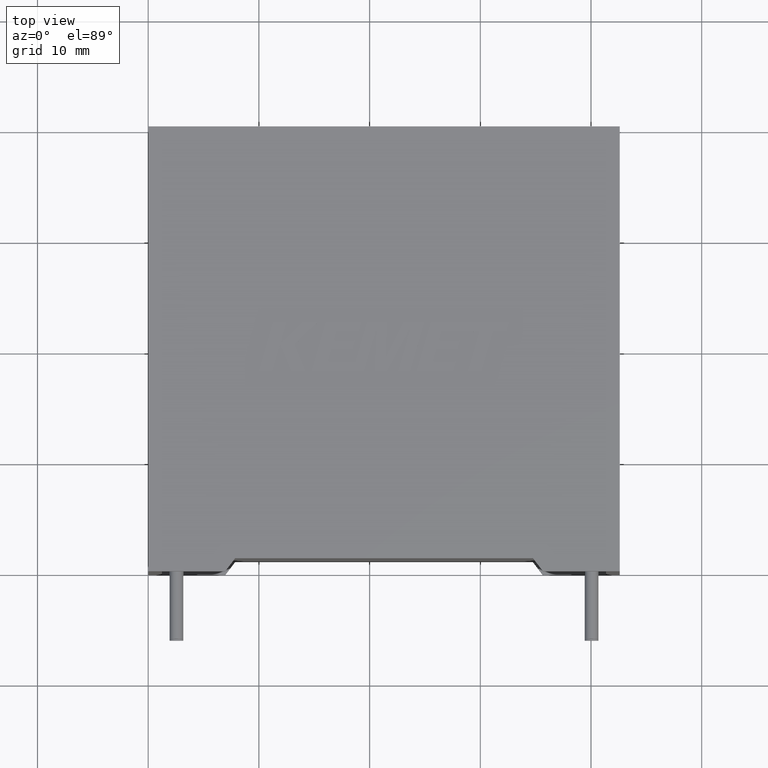
[diagram: clean part render]
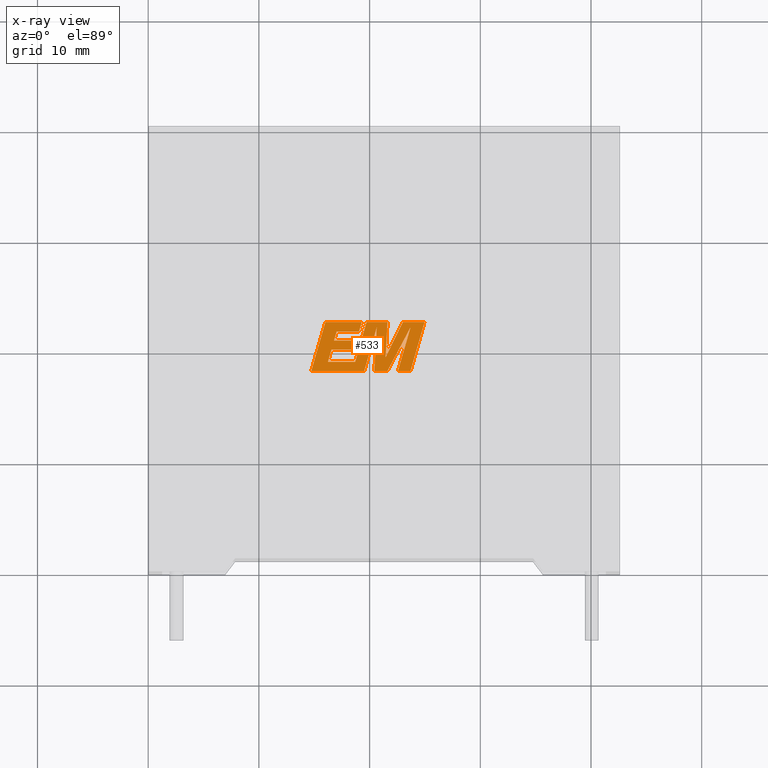
[diagram: x-ray — body ghosted, one internal face saturated and labeled with its STEP entity id]
A machine part, top view, then the same camera in x-ray: the body is ghosted and one INTERNAL B-rep face — a face not visible from any outside direction — is saturated and labeled: STEP entity #533.
In plain terms, the highlighted planar face has unit normal (0, 0, -1).
Its self-contained STEP definition (entity closure, byte-faithful):
#13 = VERTEX_POINT ( 'NONE', #274 ) ;
#34 = CARTESIAN_POINT ( 'NONE',  ( 22.55971088192821100, 18.07793999999988100, 20.39999999999999900 ) ) ;
#35 = VECTOR ( 'NONE', #1346, 1000.000000000000000 ) ;
#64 = VECTOR ( 'NONE', #1162, 1000.000000000000000 ) ;
#78 = CARTESIAN_POINT ( 'NONE',  ( 17.02363656092146000, 21.66919180815600000, 20.39999999999999900 ) ) ;
#96 = DIRECTION ( 'NONE',  ( -1.000000000000000000, 0.0000000000000000000, 0.0000000000000000000 ) ) ;
#104 = LINE ( 'NONE', #1481, #142 ) ;
#106 = DIRECTION ( 'NONE',  ( 0.2746459304916870600, 0.9615454294334487800, 0.0000000000000000000 ) ) ;
#123 = VERTEX_POINT ( 'NONE', #782 ) ;
#130 = VECTOR ( 'NONE', #2457, 1000.000000000000100 ) ;
#139 = ORIENTED_EDGE ( 'NONE', *, *, #2895, .F. ) ;
#142 = VECTOR ( 'NONE', #1519, 1000.000000000000100 ) ;
#171 = ORIENTED_EDGE ( 'NONE', *, *, #1486, .F. ) ;
#172 = VECTOR ( 'NONE', #2100, 1000.000000000000100 ) ;
#175 = EDGE_CURVE ( 'NONE', #3006, #1748, #2661, .T. ) ;
#180 = CARTESIAN_POINT ( 'NONE',  ( 14.73111344322171200, 18.07793999999987700, 20.39999999999999900 ) ) ;
#193 = CARTESIAN_POINT ( 'NONE',  ( 21.60450190883435100, 18.07793999999987700, 20.39999999999999900 ) ) ;
#243 = LINE ( 'NONE', #2799, #280 ) ;
#245 = EDGE_CURVE ( 'NONE', #2640, #1157, #908, .T. ) ;
#246 = VERTEX_POINT ( 'NONE', #386 ) ;
#247 = LINE ( 'NONE', #1046, #2102 ) ;
#274 = CARTESIAN_POINT ( 'NONE',  ( 20.64337227469650000, 22.02677815657259000, 20.39999999999999900 ) ) ;
#278 = EDGE_CURVE ( 'NONE', #2679, #3089, #980, .T. ) ;
#280 = VECTOR ( 'NONE', #582, 1000.000000000000100 ) ;
#290 = EDGE_CURVE ( 'NONE', #13, #835, #1454, .T. ) ;
#320 = CARTESIAN_POINT ( 'NONE',  ( 22.55971088192821100, 18.07793999999988100, 20.39999999999999900 ) ) ;
#332 = VERTEX_POINT ( 'NONE', #3072 ) ;
#340 = LINE ( 'NONE', #2950, #591 ) ;
#359 = LINE ( 'NONE', #1968, #2697 ) ;
#361 = EDGE_LOOP ( 'NONE', ( #2937, #1826, #2593, #650, #2769, #2349, #2842, #2315, #1728, #171, #429, #1296, #639, #139, #1788, #697, #1756, #1718, #1377, #2637, #3094, #2693, #836 ) ) ;
#366 = VECTOR ( 'NONE', #2749, 1000.000000000000000 ) ;
#384 = DIRECTION ( 'NONE',  ( -0.2762517575166409900, -0.9610853065513834700, 0.0000000000000000000 ) ) ;
#386 = CARTESIAN_POINT ( 'NONE',  ( 16.00748119315608500, 22.51347267852246900, 20.39999999999999900 ) ) ;
#417 = LINE ( 'NONE', #1843, #2752 ) ;
#429 = ORIENTED_EDGE ( 'NONE', *, *, #696, .F. ) ;
#533 = ADVANCED_FACE ( 'NONE', ( #2837 ), #1226, .T. ) ;
#537 = VECTOR ( 'NONE', #2230, 1000.000000000000000 ) ;
#573 = VECTOR ( 'NONE', #2010, 1000.000000000000200 ) ;
#582 = DIRECTION ( 'NONE',  ( 0.2793947940878290800, 0.9601763114327595000, 0.0000000000000000000 ) ) ;
#591 = VECTOR ( 'NONE', #96, 1000.000000000000000 ) ;
#639 = ORIENTED_EDGE ( 'NONE', *, *, #2723, .F. ) ;
#650 = ORIENTED_EDGE ( 'NONE', *, *, #2808, .F. ) ;
#656 = EDGE_CURVE ( 'NONE', #1748, #13, #2955, .T. ) ;
#658 = LINE ( 'NONE', #1070, #2475 ) ;
#696 = EDGE_CURVE ( 'NONE', #1105, #246, #2122, .T. ) ;
#697 = ORIENTED_EDGE ( 'NONE', *, *, #2248, .F. ) ;
#712 = DIRECTION ( 'NONE',  ( 0.0000000000000000000, 0.0000000000000000000, -1.000000000000000000 ) ) ;
#745 = CARTESIAN_POINT ( 'NONE',  ( 19.50954545448809100, 18.07793999999987700, 20.39999999999999900 ) ) ;
#771 = CARTESIAN_POINT ( 'NONE',  ( 19.04451057535562700, 21.66919180815600000, 20.39999999999999900 ) ) ;
#782 = CARTESIAN_POINT ( 'NONE',  ( 19.04451057535562700, 21.66919180815600000, 20.39999999999999900 ) ) ;
#792 = VECTOR ( 'NONE', #2536, 1000.000000000000000 ) ;
#803 = CARTESIAN_POINT ( 'NONE',  ( 17.02363656092146000, 21.66919180815600000, 20.39999999999999900 ) ) ;
#815 = LINE ( 'NONE', #1623, #172 ) ;
#835 = VERTEX_POINT ( 'NONE', #2040 ) ;
#836 = ORIENTED_EDGE ( 'NONE', *, *, #1391, .F. ) ;
#837 = CARTESIAN_POINT ( 'NONE',  ( 19.28430409104226900, 22.51347267852246900, 20.39999999999999900 ) ) ;
#845 = EDGE_CURVE ( 'NONE', #2505, #2640, #1369, .T. ) ;
#849 = LINE ( 'NONE', #771, #573 ) ;
#862 = CARTESIAN_POINT ( 'NONE',  ( 19.50954545448809100, 18.07793999999987700, 20.39999999999999900 ) ) ;
#864 = EDGE_CURVE ( 'NONE', #1865, #332, #340, .T. ) ;
#908 = LINE ( 'NONE', #1326, #2087 ) ;
#980 = LINE ( 'NONE', #1098, #35 ) ;
#1009 = LINE ( 'NONE', #193, #64 ) ;
#1046 = CARTESIAN_POINT ( 'NONE',  ( 23.69914816909359300, 22.04579440274525800, 20.39999999999999900 ) ) ;
#1052 = EDGE_CURVE ( 'NONE', #3056, #2587, #1009, .T. ) ;
#1070 = CARTESIAN_POINT ( 'NONE',  ( 18.45314577919338500, 20.02420559325016900, 20.39999999999999900 ) ) ;
#1072 = CARTESIAN_POINT ( 'NONE',  ( 21.44508031966771700, 19.34467114338324800, 20.39999999999999900 ) ) ;
#1081 = CARTESIAN_POINT ( 'NONE',  ( 18.69434191160631900, 18.92180278269269100, 20.39999999999999900 ) ) ;
#1098 = CARTESIAN_POINT ( 'NONE',  ( 18.68735580131990700, 20.84418343126179400, 20.39999999999999900 ) ) ;
#1105 = VERTEX_POINT ( 'NONE', #3100 ) ;
#1113 = VECTOR ( 'NONE', #2738, 1000.000000000000000 ) ;
#1118 = VECTOR ( 'NONE', #2450, 1000.000000000000000 ) ;
#1157 = VERTEX_POINT ( 'NONE', #1730 ) ;
#1159 = CARTESIAN_POINT ( 'NONE',  ( 21.44508031966771700, 19.34467114338324800, 20.39999999999999900 ) ) ;
#1162 = DIRECTION ( 'NONE',  ( 0.4668459304955230900, 0.8843386665637600300, 0.0000000000000000000 ) ) ;
#1226 = PLANE ( 'NONE',  #2130 ) ;
#1236 = LINE ( 'NONE', #3146, #1118 ) ;
#1255 = CARTESIAN_POINT ( 'NONE',  ( 23.69914816909359300, 22.04579440274525800, 20.39999999999999900 ) ) ;
#1296 = ORIENTED_EDGE ( 'NONE', *, *, #2751, .F. ) ;
#1326 = CARTESIAN_POINT ( 'NONE',  ( 21.61565822307399600, 22.51347267852246900, 20.39999999999999900 ) ) ;
#1336 = DIRECTION ( 'NONE',  ( 1.000000000000000000, 0.0000000000000000000, 0.0000000000000000000 ) ) ;
#1346 = DIRECTION ( 'NONE',  ( -1.000000000000000000, 0.0000000000000000000, 0.0000000000000000000 ) ) ;
#1369 = LINE ( 'NONE', #1072, #1848 ) ;
#1377 = ORIENTED_EDGE ( 'NONE', *, *, #2656, .F. ) ;
#1391 = EDGE_CURVE ( 'NONE', #332, #2505, #359, .T. ) ;
#1418 = VERTEX_POINT ( 'NONE', #1713 ) ;
#1442 = VERTEX_POINT ( 'NONE', #2228 ) ;
#1454 = LINE ( 'NONE', #1591, #3111 ) ;
#1470 = VERTEX_POINT ( 'NONE', #34 ) ;
#1476 = CARTESIAN_POINT ( 'NONE',  ( 18.68735580131990700, 20.84418343126179400, 20.39999999999999900 ) ) ;
#1481 = CARTESIAN_POINT ( 'NONE',  ( 16.00748119315608500, 22.51347267852246900, 20.39999999999999900 ) ) ;
#1486 = EDGE_CURVE ( 'NONE', #246, #3006, #104, .T. ) ;
#1511 = CARTESIAN_POINT ( 'NONE',  ( 20.42202856382045800, 18.07793999999987700, 20.39999999999999900 ) ) ;
#1519 = DIRECTION ( 'NONE',  ( -0.2765379750249978300, -0.9610029908221272600, 0.0000000000000000000 ) ) ;
#1530 = DIRECTION ( 'NONE',  ( -0.2760118818968583200, -0.9611542233438683500, 0.0000000000000000000 ) ) ;
#1554 = CARTESIAN_POINT ( 'NONE',  ( 16.54963302310860100, 20.02420559325016900, 20.39999999999999900 ) ) ;
#1591 = CARTESIAN_POINT ( 'NONE',  ( 20.64337227469650000, 22.02677815657259000, 20.39999999999999900 ) ) ;
#1614 = CARTESIAN_POINT ( 'NONE',  ( 18.45314577919338500, 20.02420559325016900, 20.39999999999999900 ) ) ;
#1618 = CARTESIAN_POINT ( 'NONE',  ( 18.72003407046369000, 18.07793999999987700, 20.39999999999999900 ) ) ;
#1623 = CARTESIAN_POINT ( 'NONE',  ( 23.68684829922329600, 18.07793999999988100, 20.39999999999999900 ) ) ;
#1642 = CARTESIAN_POINT ( 'NONE',  ( 23.68684829922329600, 18.07793999999988100, 20.39999999999999900 ) ) ;
#1657 = CARTESIAN_POINT ( 'NONE',  ( 24.96209664954390200, 22.51347267852246900, 20.39999999999999900 ) ) ;
#1669 = CARTESIAN_POINT ( 'NONE',  ( 16.78357331124689000, 20.84418343126179400, 20.39999999999999900 ) ) ;
#1713 = CARTESIAN_POINT ( 'NONE',  ( 16.23552779361820300, 18.92180278269269100, 20.39999999999999900 ) ) ;
#1718 = ORIENTED_EDGE ( 'NONE', *, *, #2766, .F. ) ;
#1728 = ORIENTED_EDGE ( 'NONE', *, *, #175, .F. ) ;
#1730 = CARTESIAN_POINT ( 'NONE',  ( 19.72672177880340200, 22.51347267852246900, 20.39999999999999900 ) ) ;
#1748 = VERTEX_POINT ( 'NONE', #862 ) ;
#1756 = ORIENTED_EDGE ( 'NONE', *, *, #2678, .F. ) ;
#1760 = EDGE_CURVE ( 'NONE', #1157, #2224, #417, .T. ) ;
#1774 = VECTOR ( 'NONE', #1336, 1000.000000000000000 ) ;
#1788 = ORIENTED_EDGE ( 'NONE', *, *, #278, .F. ) ;
#1826 = ORIENTED_EDGE ( 'NONE', *, *, #2419, .F. ) ;
#1834 = DIRECTION ( 'NONE',  ( -1.000000000000000000, 0.0000000000000000000, 0.0000000000000000000 ) ) ;
#1843 = CARTESIAN_POINT ( 'NONE',  ( 19.72672177880340200, 22.51347267852246900, 20.39999999999999900 ) ) ;
#1848 = VECTOR ( 'NONE', #2763, 1000.000000000000100 ) ;
#1865 = VERTEX_POINT ( 'NONE', #1657 ) ;
#1882 = CARTESIAN_POINT ( 'NONE',  ( 21.60450190883435100, 18.07793999999987700, 20.39999999999999900 ) ) ;
#1968 = CARTESIAN_POINT ( 'NONE',  ( 23.01670218402871300, 22.51347267852246900, 20.39999999999999900 ) ) ;
#2010 = DIRECTION ( 'NONE',  ( 0.2732148821746573400, 0.9619530280415400400, 0.0000000000000000000 ) ) ;
#2040 = CARTESIAN_POINT ( 'NONE',  ( 20.42202856382045800, 18.07793999999987700, 20.39999999999999900 ) ) ;
#2087 = VECTOR ( 'NONE', #1834, 1000.000000000000000 ) ;
#2100 = DIRECTION ( 'NONE',  ( 0.2763139702539144100, 0.9610674221107065000, 0.0000000000000000000 ) ) ;
#2102 = VECTOR ( 'NONE', #1530, 1000.000000000000100 ) ;
#2122 = LINE ( 'NONE', #837, #792 ) ;
#2130 = AXIS2_PLACEMENT_3D ( 'NONE', #2915, #712, #2403 ) ;
#2152 = EDGE_CURVE ( 'NONE', #835, #3056, #3017, .T. ) ;
#2180 = LINE ( 'NONE', #2704, #130 ) ;
#2224 = VERTEX_POINT ( 'NONE', #1081 ) ;
#2228 = CARTESIAN_POINT ( 'NONE',  ( 16.54963302310860100, 20.02420559325016900, 20.39999999999999900 ) ) ;
#2230 = DIRECTION ( 'NONE',  ( 1.000000000000000000, 0.0000000000000000000, 0.0000000000000000000 ) ) ;
#2248 = EDGE_CURVE ( 'NONE', #2359, #2679, #658, .T. ) ;
#2256 = VECTOR ( 'NONE', #2947, 1000.000000000000000 ) ;
#2279 = VERTEX_POINT ( 'NONE', #803 ) ;
#2286 = LINE ( 'NONE', #1554, #366 ) ;
#2291 = DIRECTION ( 'NONE',  ( -0.05596501978068446600, -0.9984327301130244700, 0.0000000000000000000 ) ) ;
#2315 = ORIENTED_EDGE ( 'NONE', *, *, #656, .F. ) ;
#2318 = VERTEX_POINT ( 'NONE', #1642 ) ;
#2349 = ORIENTED_EDGE ( 'NONE', *, *, #2152, .F. ) ;
#2359 = VERTEX_POINT ( 'NONE', #1614 ) ;
#2403 = DIRECTION ( 'NONE',  ( -1.000000000000000000, 0.0000000000000000000, -0.0000000000000000000 ) ) ;
#2419 = EDGE_CURVE ( 'NONE', #2318, #1865, #815, .T. ) ;
#2422 = DIRECTION ( 'NONE',  ( -0.4443210308329524900, -0.8958676361826798400, 0.0000000000000000000 ) ) ;
#2450 = DIRECTION ( 'NONE',  ( -1.000000000000000000, 0.0000000000000000000, 0.0000000000000000000 ) ) ;
#2457 = DIRECTION ( 'NONE',  ( 0.2740217765954296400, 0.9617234872620531400, 0.0000000000000000000 ) ) ;
#2471 = LINE ( 'NONE', #320, #537 ) ;
#2475 = VECTOR ( 'NONE', #106, 1000.000000000000000 ) ;
#2505 = VERTEX_POINT ( 'NONE', #1159 ) ;
#2536 = DIRECTION ( 'NONE',  ( -1.000000000000000000, 0.0000000000000000000, 0.0000000000000000000 ) ) ;
#2587 = VERTEX_POINT ( 'NONE', #1255 ) ;
#2593 = ORIENTED_EDGE ( 'NONE', *, *, #2750, .F. ) ;
#2637 = ORIENTED_EDGE ( 'NONE', *, *, #1760, .F. ) ;
#2640 = VERTEX_POINT ( 'NONE', #2686 ) ;
#2656 = EDGE_CURVE ( 'NONE', #2224, #1418, #1236, .T. ) ;
#2661 = LINE ( 'NONE', #1618, #1774 ) ;
#2678 = EDGE_CURVE ( 'NONE', #1442, #2359, #2286, .T. ) ;
#2679 = VERTEX_POINT ( 'NONE', #1476 ) ;
#2686 = CARTESIAN_POINT ( 'NONE',  ( 21.61565822307399600, 22.51347267852246900, 20.39999999999999900 ) ) ;
#2693 = ORIENTED_EDGE ( 'NONE', *, *, #845, .F. ) ;
#2697 = VECTOR ( 'NONE', #2422, 1000.000000000000100 ) ;
#2704 = CARTESIAN_POINT ( 'NONE',  ( 16.23552779361820300, 18.92180278269269100, 20.39999999999999900 ) ) ;
#2712 = DIRECTION ( 'NONE',  ( 0.2759782365590843200, 0.9611638845408925200, 0.0000000000000000000 ) ) ;
#2723 = EDGE_CURVE ( 'NONE', #2279, #123, #3129, .T. ) ;
#2738 = DIRECTION ( 'NONE',  ( 1.000000000000000000, 0.0000000000000000000, 0.0000000000000000000 ) ) ;
#2749 = DIRECTION ( 'NONE',  ( 1.000000000000000000, 0.0000000000000000000, 0.0000000000000000000 ) ) ;
#2750 = EDGE_CURVE ( 'NONE', #1470, #2318, #2471, .T. ) ;
#2751 = EDGE_CURVE ( 'NONE', #123, #1105, #849, .T. ) ;
#2752 = VECTOR ( 'NONE', #384, 1000.000000000000200 ) ;
#2763 = DIRECTION ( 'NONE',  ( 0.05375259206908569700, 0.9985542843760946100, 0.0000000000000000000 ) ) ;
#2766 = EDGE_CURVE ( 'NONE', #1418, #1442, #2180, .T. ) ;
#2769 = ORIENTED_EDGE ( 'NONE', *, *, #1052, .F. ) ;
#2799 = CARTESIAN_POINT ( 'NONE',  ( 16.78357331124689000, 20.84418343126179400, 20.39999999999999900 ) ) ;
#2808 = EDGE_CURVE ( 'NONE', #2587, #1470, #247, .T. ) ;
#2837 = FACE_OUTER_BOUND ( 'NONE', #361, .T. ) ;
#2842 = ORIENTED_EDGE ( 'NONE', *, *, #290, .F. ) ;
#2895 = EDGE_CURVE ( 'NONE', #3089, #2279, #243, .T. ) ;
#2915 = CARTESIAN_POINT ( 'NONE',  ( -0.1503410928526370500, -4.145153983250438000, 20.39999999999999900 ) ) ;
#2937 = ORIENTED_EDGE ( 'NONE', *, *, #864, .F. ) ;
#2947 = DIRECTION ( 'NONE',  ( 1.000000000000000000, 0.0000000000000000000, 0.0000000000000000000 ) ) ;
#2950 = CARTESIAN_POINT ( 'NONE',  ( 24.96209664954390200, 22.51347267852246900, 20.39999999999999900 ) ) ;
#2955 = LINE ( 'NONE', #745, #2989 ) ;
#2989 = VECTOR ( 'NONE', #2712, 1000.000000000000000 ) ;
#3006 = VERTEX_POINT ( 'NONE', #180 ) ;
#3017 = LINE ( 'NONE', #1511, #2256 ) ;
#3056 = VERTEX_POINT ( 'NONE', #1882 ) ;
#3072 = CARTESIAN_POINT ( 'NONE',  ( 23.01670218402871300, 22.51347267852246900, 20.39999999999999900 ) ) ;
#3089 = VERTEX_POINT ( 'NONE', #1669 ) ;
#3094 = ORIENTED_EDGE ( 'NONE', *, *, #245, .F. ) ;
#3100 = CARTESIAN_POINT ( 'NONE',  ( 19.28430409104226900, 22.51347267852246900, 20.39999999999999900 ) ) ;
#3111 = VECTOR ( 'NONE', #2291, 1000.000000000000000 ) ;
#3129 = LINE ( 'NONE', #78, #1113 ) ;
#3146 = CARTESIAN_POINT ( 'NONE',  ( 18.69434191160631900, 18.92180278269269100, 20.39999999999999900 ) ) ;